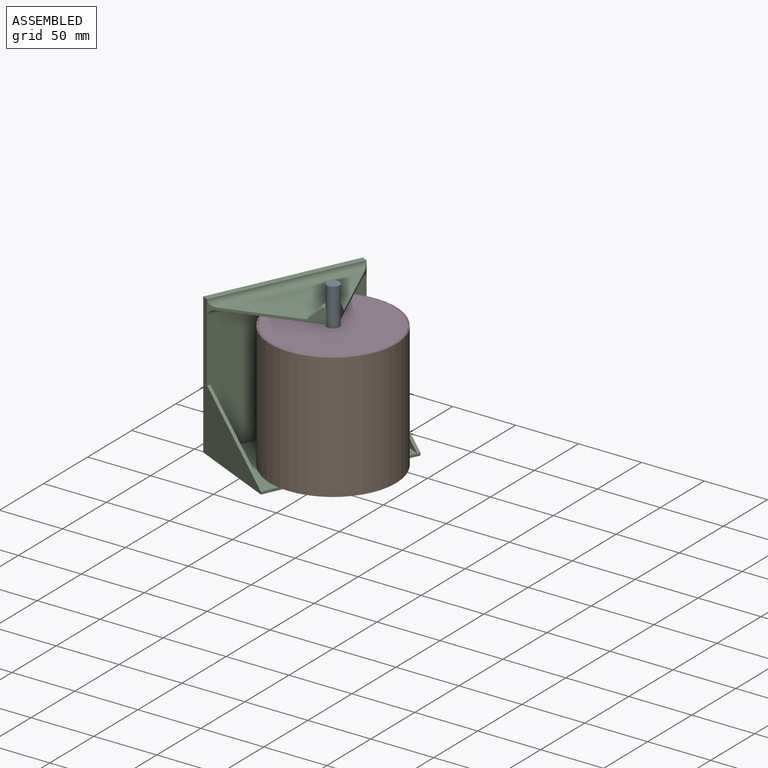
[diagram: assembled view]
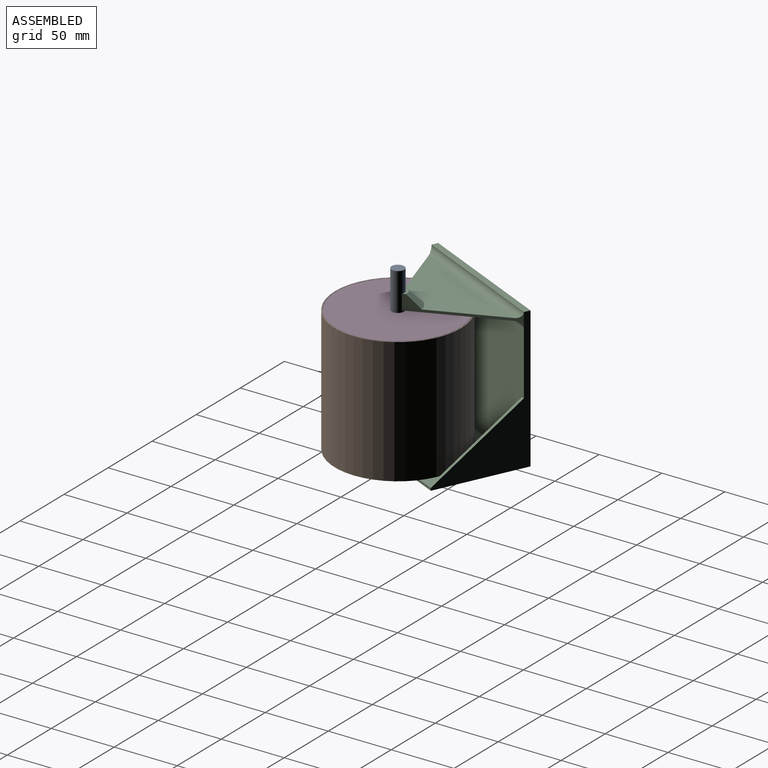
[diagram: assembled view, second angle]
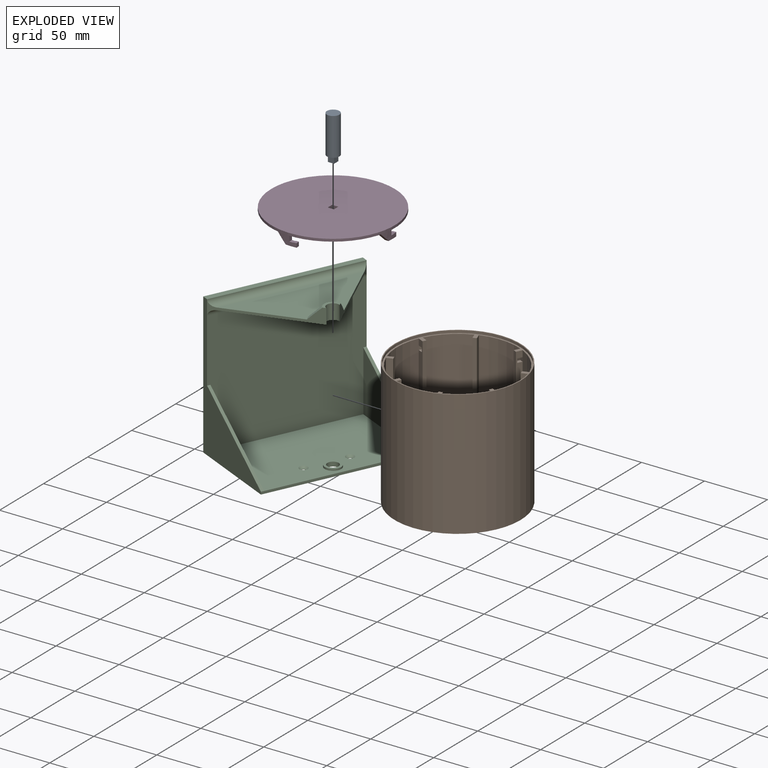
[diagram: exploded view]
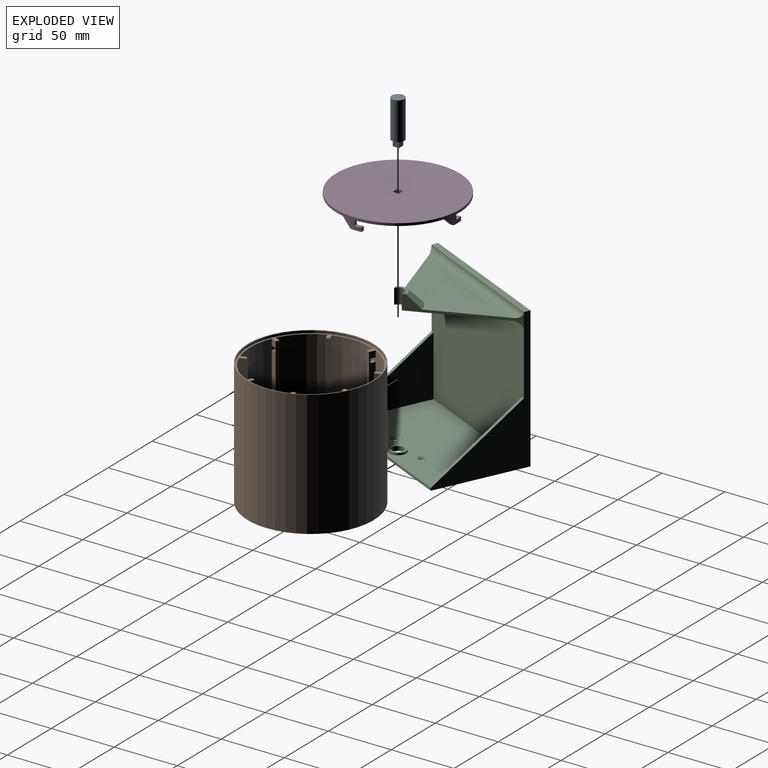
[diagram: exploded view, second angle]
ASSEMBLY  parts=4 mates=3
PART A: 10 faces, bbox 10x10x35 mm
  f0: plane 5x4.9mm, normal (0,-1,0), area 24.5mm2, adj f1,f3,f4,f5
  f1: plane 5x4.9mm, normal (1,0,0), area 24.5mm2, adj f0,f2,f4,f5
  f2: plane 5x4.9mm, normal (0,1,0), area 24.5mm2, adj f1,f3,f4,f5
  f3: plane 5x4.9mm, normal (-1,0,0), area 24.5mm2, adj f0,f2,f4,f5
  f4: plane 4.9x4.9mm, normal (0,0,1), area 16.9mm2, adj f0,f1,f2,f3,f8
  f5: plane 10x10mm, normal (0,0,1), area 54.5mm2, adj f0,f1,f2,f3,f6
  f6: cylinder r=5mm len=30mm, axis (0,0,1), area 942.5mm2, adj f5,f7
  f7: plane 10x10mm, normal (0,0,-1), area 78.5mm2, adj f6
  f8: cylinder r=1.5mm len=25mm, axis (0,0,1), area 235.6mm2, adj f4,f9
  f9: plane 3x3mm, normal (0,0,1), area 7.1mm2, adj f8
PART B: 61 faces, bbox 100x100x100 mm
  f0: plane 96x5mm, normal (0,-1,0), area 467mm2, adj f2,f4,f20,f41,f53,f55,f56
  f1: plane 96x5mm, normal (1,0,0), area 467mm2, adj f2,f7,f20,f35,f45,f46,f47
  f2: plane 95.95x95.95mm, normal (0,0,1), area 6771.5mm2, adj f0,f1,f3,f4,f5,f6,f7,f8
  f3: cylinder r=48mm len=96mm, axis (0,0,-1), area 3331.1mm2, adj f2,f20,f23,f44,f49
  f4: cylinder r=48mm len=96mm, axis (0,0,-1), area 3331.1mm2, adj f0,f2,f20,f42,f54
  f5: cylinder r=48mm len=96mm, axis (0,0,-1), area 3331.1mm2, adj f2,f20,f39,f40,f54
  f6: cylinder r=48mm len=96mm, axis (0,0,-1), area 3331.1mm2, adj f2,f20,f36,f37,f48
  f7: cylinder r=48mm len=96mm, axis (0,0,-1), area 3331.1mm2, adj f1,f2,f20,f34,f48
  f8: cylinder r=48mm len=96mm, axis (0,0,-1), area 3331.1mm2, adj f2,f20,f31,f32,f57
  f9: cylinder r=48mm len=96mm, axis (0,0,-1), area 3331.1mm2, adj f2,f20,f28,f29,f57
  f10: cylinder r=48mm len=96mm, axis (0,0,-1), area 3331.1mm2, adj f2,f20,f25,f26,f49
  f11: cylinder r=50mm len=100mm, axis (0,0,-1), area 31415.9mm2, adj f12,f13
  f12: plane 100x100mm, normal (0,0,1), area 233.9mm2, adj f11,f19
  f13: plane 100x100mm, normal (0,0,-1), area 7839.9mm2, adj f11,f14,f15,f16,f17
  f14: cylinder r=2.5mm len=7mm, axis (0,0,-1), area 22.5mm2, adj f13,f15,f17,f18
  f15: plane 7x4mm, normal (1,0,0), area 28mm2, adj f13,f14,f16,f18
  f16: cylinder r=2.5mm len=7mm, axis (0,0,-1), area 22.5mm2, adj f13,f15,f17,f18
  f17: plane 7x4mm, normal (-1,0,0), area 28mm2, adj f13,f14,f16,f18
  f18: plane 5x3mm, normal (0,0,-1), area 14mm2, adj f14,f15,f16,f17
  f19: cylinder r=49.25mm len=98.5mm, axis (0,0,1), area 618.9mm2, adj f12,f20
  f20: plane 98.5x98.5mm, normal (0,0,1), area 502.3mm2, adj f0,f1,f3,f4,f5,f6,f7,f8
  f21: plane 7x7mm, normal (0,0,1), area 38.5mm2, adj f22
  f22: cone r=3.5mm half-angle=45deg, axis (0,0,-1), area 435.4mm2, adj f2,f21
  f23: plane 96x5mm, normal (-1,0,0), area 467mm2, adj f2,f3,f20,f24,f50,f51,f52
  f24: plane 96x3mm, normal (0,1,0), area 288mm2, adj f2,f20,f23,f25
  f25: plane 96x5mm, normal (1,0,0), area 467mm2, adj f2,f10,f20,f24,f50,f51,f52
  f26: plane 96x3.54mm, normal (-0.71,-0.71,0), area 480mm2, adj f2,f10,f20,f27
  f27: plane 96x2.12mm, normal (-0.71,0.71,0), area 288mm2, adj f2,f20,f26,f28
  f28: plane 96x3.54mm, normal (0.71,0.71,0), area 480mm2, adj f2,f9,f20,f27
  f29: plane 96x5mm, normal (0,-1,0), area 467mm2, adj f2,f9,f20,f30,f58,f59,f60
  f30: plane 96x3mm, normal (-1,0,0), area 288mm2, adj f2,f20,f29,f31
  f31: plane 96x5mm, normal (0,1,0), area 467mm2, adj f2,f8,f20,f30,f58,f59,f60
  f32: plane 96x3.54mm, normal (0.71,-0.71,0), area 480mm2, adj f2,f8,f20,f33
  f33: plane 96x2.12mm, normal (-0.71,-0.71,0), area 288mm2, adj f2,f20,f32,f34
  f34: plane 96x3.54mm, normal (-0.71,0.71,0), area 480mm2, adj f2,f7,f20,f33
  f35: plane 96x3mm, normal (0,-1,0), area 288mm2, adj f1,f2,f20,f36
  f36: plane 96x5mm, normal (-1,0,0), area 467mm2, adj f2,f6,f20,f35,f45,f46,f47
  f37: plane 96x3.54mm, normal (0.71,0.71,0), area 480mm2, adj f2,f6,f20,f38
  f38: plane 96x2.12mm, normal (0.71,-0.71,0), area 288mm2, adj f2,f20,f37,f39
  f39: plane 96x3.54mm, normal (-0.71,-0.71,0), area 480mm2, adj f2,f5,f20,f38
  f40: plane 96x5mm, normal (0,1,0), area 467mm2, adj f2,f5,f20,f41,f53,f55,f56
  f41: plane 96x3mm, normal (1,0,0), area 288mm2, adj f0,f2,f20,f40
  f42: plane 96x3.54mm, normal (-0.71,0.71,0), area 480mm2, adj f2,f4,f20,f43
  f43: plane 96x2.12mm, normal (0.71,0.71,0), area 288mm2, adj f2,f20,f42,f44
  f44: plane 96x3.54mm, normal (0.71,-0.71,0), area 480mm2, adj f2,f3,f20,f43
  f45: plane 3.25x3mm, normal (0,1,0), area 9.8mm2, adj f1,f36,f46,f47
  f46: plane 4x3mm, normal (0,0,1), area 12mm2, adj f1,f36,f45,f48
  f47: plane 4x3mm, normal (0,0,-1), area 12mm2, adj f1,f36,f45,f48
  f48: plane 3.25x3mm, normal (0,-1,0), area 9.8mm2, adj f6,f7,f46,f47
  f49: plane 3.25x3mm, normal (0,1,0), area 9.8mm2, adj f3,f10,f50,f51
  f50: plane 4x3mm, normal (0,0,1), area 12mm2, adj f23,f25,f49,f52
  f51: plane 4x3mm, normal (0,0,-1), area 12mm2, adj f23,f25,f49,f52
  f52: plane 3.25x3mm, normal (0,-1,0), area 9.8mm2, adj f23,f25,f50,f51
  f53: plane 4x3mm, normal (0,0,-1), area 12mm2, adj f0,f40,f54,f55
  f54: plane 3.25x3mm, normal (1,0,0), area 9.8mm2, adj f4,f5,f53,f56
  f55: plane 3.25x3mm, normal (-1,0,0), area 9.8mm2, adj f0,f40,f53,f56
  f56: plane 4x3mm, normal (0,0,1), area 12mm2, adj f0,f40,f54,f55
  f57: plane 3.25x3mm, normal (-1,0,0), area 9.8mm2, adj f8,f9,f58,f59
  f58: plane 4x3mm, normal (0,0,1), area 12mm2, adj f29,f31,f57,f60
  f59: plane 4x3mm, normal (0,0,-1), area 12mm2, adj f29,f31,f57,f60
  f60: plane 3.25x3mm, normal (1,0,0), area 9.8mm2, adj f29,f31,f58,f59
PART C: 28 faces, bbox 117x120x75 mm
  f0: plane 120x112mm, normal (0,0,1), area 13440mm2, adj f4,f5,f6,f27
  f1: plane 110.83x45.17mm, normal (1,0,0), area 2993mm2, adj f12,f13,f23,f26
  f2: plane 120x98mm, normal (0,0,-1), area 11520mm2, adj f3,f4,f5,f15,f16,f17,f18,f24
  f3: plane 115x70mm, normal (1,0,0), area 7846.3mm2, adj f2,f7,f9,f16,f18,f20,f22
  f4: plane 112x75mm, normal (0,-1,0), area 2380mm2, adj f0,f2,f6,f7,f13,f17,f27
  f5: plane 112x75mm, normal (0,1,0), area 2380mm2, adj f0,f2,f6,f7,f12,f15,f27
  f6: plane 120x75mm, normal (-1,0,0), area 8918.2mm2, adj f0,f4,f5,f7,f8,f19,f21
  f7: plane 120x2mm, normal (0,0,-1), area 240mm2, adj f3,f4,f5,f6,f15,f17
  f8: cylinder r=4.5mm len=9mm, axis (-1,0,0), area 99mm2, adj f6,f10
  f9: cylinder r=6.5mm len=13mm, axis (-1,0,0), area 61.3mm2, adj f3,f10
  f10: plane 13x13mm, normal (1,0,0), area 69.1mm2, adj f8,f9
  f11: cylinder r=5mm len=12mm, axis (-1,0,0), area 188.5mm2, adj f12,f13,f14,f25
  f12: plane 60x55mm, normal (0,0.74,-0.68), area 258.5mm2, adj f1,f5,f11,f14,f23,f24,f25,f26
  f13: plane 60x55mm, normal (0,-0.74,-0.68), area 258.5mm2, adj f1,f4,f11,f14,f23,f24,f25,f26
  f14: plane 110.83x55mm, normal (-1,0,0), area 3283.6mm2, adj f11,f12,f13,f24
  f15: plane 70x48mm, normal (0.82,0,-0.57), area 212.2mm2, adj f2,f5,f7,f16
  f16: plane 70x48mm, normal (0,-1,0), area 1680mm2, adj f2,f3,f15
  f17: plane 70x48mm, normal (0.82,0,-0.57), area 212.2mm2, adj f2,f4,f7,f18
  f18: plane 70x48mm, normal (0,1,0), area 1680mm2, adj f2,f3,f17
  f19: cylinder r=1.7mm len=3.4mm, axis (1,0,0), area 3.6mm2, adj f6,f20
  f20: cone r=1.7mm half-angle=45deg, axis (1,0,0), area 37.3mm2, adj f3,f19
  f21: cylinder r=1.7mm len=3.4mm, axis (1,0,0), area 3.6mm2, adj f6,f22
  f22: cone r=1.7mm half-angle=45deg, axis (1,0,0), area 37.3mm2, adj f3,f21
  f23: cylinder r=5mm len=120mm, axis (0,-1,0), area 916.3mm2, adj f1,f12,f13,f27
  f24: cylinder r=5mm len=120mm, axis (0,1,0), area 916.3mm2, adj f2,f12,f13,f14
  f25: plane 13.65x7.11mm, normal (1,0,0), area 35.7mm2, adj f11,f12,f13,f26
  f26: cone r=7.11mm half-angle=45deg, axis (-1,0,0), area 360.5mm2, adj f1,f12,f13,f25
  f27: plane 120x5mm, normal (1,0,0), area 600mm2, adj f0,f4,f5,f23
PART D: 47 faces, bbox 98x98x10 mm
  f0: plane 98x98mm, normal (0,0,-1), area 6956.7mm2, adj f1,f3,f11,f12,f13,f19,f25,f26
  f1: plane 5x3mm, normal (-1,0,0), area 15mm2, adj f0,f12,f13,f16
  f2: plane 98x98mm, normal (0,0,1), area 7518mm2, adj f3,f5,f6,f7,f8
  f3: cylinder r=49mm len=98mm, axis (0,0,-1), area 615.8mm2, adj f0,f2
  f4: plane 10x10mm, normal (0,0,-1), area 28.3mm2, adj f10,f11
  f5: plane 6x5mm, normal (0,1,0), area 30mm2, adj f2,f6,f8,f9
  f6: plane 6x5mm, normal (-1,0,0), area 30mm2, adj f2,f5,f7,f9
  f7: plane 6x5mm, normal (0,-1,0), area 30mm2, adj f2,f6,f8,f9
  f8: plane 6x5mm, normal (1,0,0), area 30mm2, adj f2,f5,f7,f9
  f9: plane 5x5mm, normal (0,0,1), area 8.8mm2, adj f5,f6,f7,f8,f10
  f10: cone r=2mm half-angle=30deg, axis (0,0,-1), area 68.2mm2, adj f4,f9
  f11: cone r=12mm half-angle=45deg, axis (0,0,1), area 528.7mm2, adj f0,f4
  f12: cylinder r=47.5mm len=16.7mm, axis (0,0,1), area 74.1mm2, adj f0,f1,f14,f15,f16,f17,f18,f19
  f13: cylinder r=44.5mm len=16.43mm, axis (0,0,1), area 73.3mm2, adj f0,f1,f14,f15,f16,f17,f18,f19
  f14: plane 8.7x3.23mm, normal (0,0,-1), area 25.7mm2, adj f12,f13,f15,f19
  f15: plane 3.2x2.99mm, normal (-1,-0.09,0), area 9.6mm2, adj f12,f13,f14,f18
  f16: plane 3.1x3.03mm, normal (0,0,1), area 9.3mm2, adj f1,f12,f13,f17
  f17: plane 3x0.2mm, normal (1,0,0), area 0.6mm2, adj f12,f13,f16,f18
  f18: plane 3.15x2.6mm, normal (0,0,1), area 7.4mm2, adj f12,f13,f15,f17
  f19: plane 8x8mm, normal (0.71,0,-0.71), area 34.6mm2, adj f0,f12,f13,f14
  f20: plane 3.2x2.99mm, normal (1,0.09,0), area 9.6mm2, adj f21,f24,f26,f27
  f21: plane 3.15x2.6mm, normal (0,0,1), area 7.4mm2, adj f20,f22,f26,f27
  f22: plane 3x0.2mm, normal (-1,0,0), area 0.6mm2, adj f21,f23,f26,f27
  f23: plane 3.1x3.03mm, normal (0,0,1), area 9.3mm2, adj f22,f26,f27,f28
  f24: plane 8.7x3.23mm, normal (0,0,-1), area 25.7mm2, adj f20,f25,f26,f27
  f25: plane 8x8mm, normal (-0.71,0,-0.71), area 34.6mm2, adj f0,f24,f26,f27
  f26: cylinder r=44.5mm len=16.43mm, axis (0,0,1), area 73.3mm2, adj f0,f20,f21,f22,f23,f24,f25,f28
  f27: cylinder r=47.5mm len=16.7mm, axis (0,0,1), area 74.1mm2, adj f0,f20,f21,f22,f23,f24,f25,f28
  f28: plane 5x3mm, normal (1,0,0), area 15mm2, adj f0,f23,f26,f27
  f29: plane 3x0.2mm, normal (0,-1,0), area 0.6mm2, adj f30,f33,f35,f36
  f30: plane 3.15x2.6mm, normal (0,0,1), area 7.4mm2, adj f29,f31,f35,f36
  f31: plane 3.2x2.99mm, normal (-0.09,1,0), area 9.6mm2, adj f30,f32,f35,f36
  f32: plane 8.7x3.23mm, normal (0,0,-1), area 25.7mm2, adj f31,f35,f36,f37
  f33: plane 3.1x3.03mm, normal (0,0,1), area 9.3mm2, adj f29,f34,f35,f36
  f34: plane 5x3mm, normal (0,1,0), area 15mm2, adj f0,f33,f35,f36
  f35: cylinder r=47.5mm len=16.7mm, axis (0,0,1), area 74.1mm2, adj f0,f29,f30,f31,f32,f33,f34,f37
  f36: cylinder r=44.5mm len=16.43mm, axis (0,0,1), area 73.3mm2, adj f0,f29,f30,f31,f32,f33,f34,f37
  f37: plane 8x8mm, normal (0,-0.71,-0.71), area 34.6mm2, adj f0,f32,f35,f36
  f38: plane 5x3mm, normal (0,-1,0), area 15mm2, adj f0,f39,f40,f43
  f39: cylinder r=47.5mm len=16.7mm, axis (0,0,1), area 74.1mm2, adj f0,f38,f41,f42,f43,f44,f45,f46
  f40: cylinder r=44.5mm len=16.43mm, axis (0,0,1), area 73.3mm2, adj f0,f38,f41,f42,f43,f44,f45,f46
  f41: plane 8.7x3.23mm, normal (0,0,-1), area 25.7mm2, adj f39,f40,f42,f46
  f42: plane 3.2x2.99mm, normal (0.09,-1,0), area 9.6mm2, adj f39,f40,f41,f45
  f43: plane 3.1x3.03mm, normal (0,0,1), area 9.3mm2, adj f38,f39,f40,f44
  f44: plane 3x0.2mm, normal (0,1,0), area 0.6mm2, adj f39,f40,f43,f45
  f45: plane 3.15x2.6mm, normal (0,0,1), area 7.4mm2, adj f39,f40,f42,f44
  f46: plane 8x8mm, normal (0,0.71,-0.71), area 34.6mm2, adj f0,f39,f40,f41
PLACE A rot(axis=(0,1,0),180deg) t=(-0.11,0.3,184.41)mm
PLACE B rot(axis=(0,0,-1),25deg) t=(-0.16,0.25,84.41)mm
PLACE C rot(axis=(-0.21,-0.95,-0.21),92.7deg) t=(-54.56,25.56,155.91)mm
PLACE D rot(axis=(0,0,1),180deg) t=(-0.16,0.25,182.41)mm
MATE revolute B.f3 <-> D.f3  axis (0,0,1) through (-0.16,0.25,182.41)mm
MATE fastened D.f2 <-> A.f5  axis (0,0,1) through (2.34,2.75,184.41)mm
MATE fastened C.f8 <-> B.f3  axis (0,0,1) through (-0.16,0.25,84.41)mm
